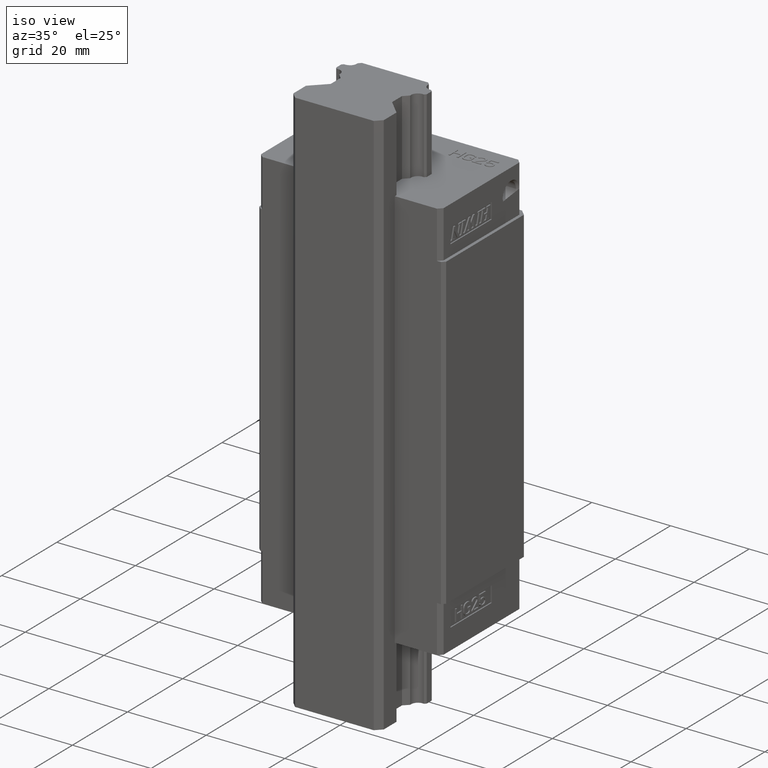
[diagram: clean part render]
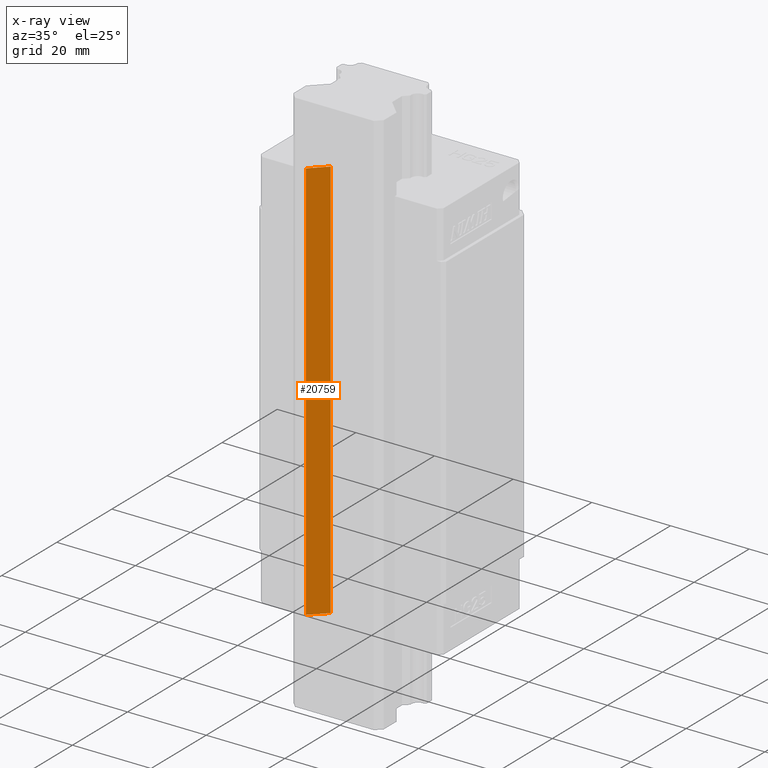
[diagram: x-ray — body ghosted, one internal face saturated and labeled with its STEP entity id]
A machine part, iso view, then the same camera in x-ray: the body is ghosted and one INTERNAL B-rep face — a face not visible from any outside direction — is saturated and labeled: STEP entity #20759.
In plain terms, the highlighted planar face has unit normal (-0.7071, 0.7071, 0).
Its self-contained STEP definition (entity closure, byte-faithful):
#1245=DIRECTION('',(0.E0,1.490685417859E-14,-1.E0));
#1246=VECTOR('',#1245,1.026E2);
#1247=CARTESIAN_POINT('',(-1.15E1,-1.590135049989E1,1.2E1));
#1248=LINE('',#1247,#1246);
#1303=DIRECTION('',(-7.071068289636E-1,-7.071067334094E-1,0.E0));
#1304=VECTOR('',#1303,5.232589827228E0);
#1305=CARTESIAN_POINT('',(-7.8E0,-1.220135099989E1,1.2E1));
#1306=LINE('',#1305,#1304);
#2138=DIRECTION('',(7.071068289636E-1,7.071067334095E-1,0.E0));
#2139=VECTOR('',#2138,5.232589827228E0);
#2140=CARTESIAN_POINT('',(-1.15E1,-1.590135049989E1,-9.06E1));
#2141=LINE('',#2140,#2139);
#2923=DIRECTION('',(0.E0,1.490685417859E-14,-1.E0));
#2924=VECTOR('',#2923,1.026E2);
#2925=CARTESIAN_POINT('',(-7.8E0,-1.220135099989E1,1.2E1));
#2926=LINE('',#2925,#2924);
#14721=CARTESIAN_POINT('',(-1.15E1,-1.590135049989E1,1.2E1));
#14722=VERTEX_POINT('',#14721);
#14723=CARTESIAN_POINT('',(-1.15E1,-1.590135049989E1,-9.06E1));
#14724=VERTEX_POINT('',#14723);
#14753=CARTESIAN_POINT('',(-7.8E0,-1.220135099989E1,1.2E1));
#14754=VERTEX_POINT('',#14753);
#15333=CARTESIAN_POINT('',(-7.8E0,-1.220135099989E1,-9.06E1));
#15334=VERTEX_POINT('',#15333);
#20748=CARTESIAN_POINT('',(-7.8E0,-1.220135099989E1,-1.09E2));
#20749=DIRECTION('',(-7.071067334098E-1,7.071068289633E-1,0.E0));
#20750=DIRECTION('',(-7.071068289633E-1,-7.071067334098E-1,0.E0));
#20751=AXIS2_PLACEMENT_3D('',#20748,#20749,#20750);
#20752=PLANE('',#20751);
#20753=ORIENTED_EDGE('',*,*,#20061,.F.);
#20754=ORIENTED_EDGE('',*,*,#19391,.F.);
#20755=ORIENTED_EDGE('',*,*,#19431,.F.);
#20756=ORIENTED_EDGE('',*,*,#20741,.T.);
#20757=EDGE_LOOP('',(#20753,#20754,#20755,#20756));
#20758=FACE_OUTER_BOUND('',#20757,.F.);
#20759=ADVANCED_FACE('',(#20758),#20752,.F.);
#19391=EDGE_CURVE('',#14722,#14724,#1248,.T.);
#19431=EDGE_CURVE('',#14754,#14722,#1306,.T.);
#20061=EDGE_CURVE('',#14724,#15334,#2141,.T.);
#20741=EDGE_CURVE('',#14754,#15334,#2926,.T.);